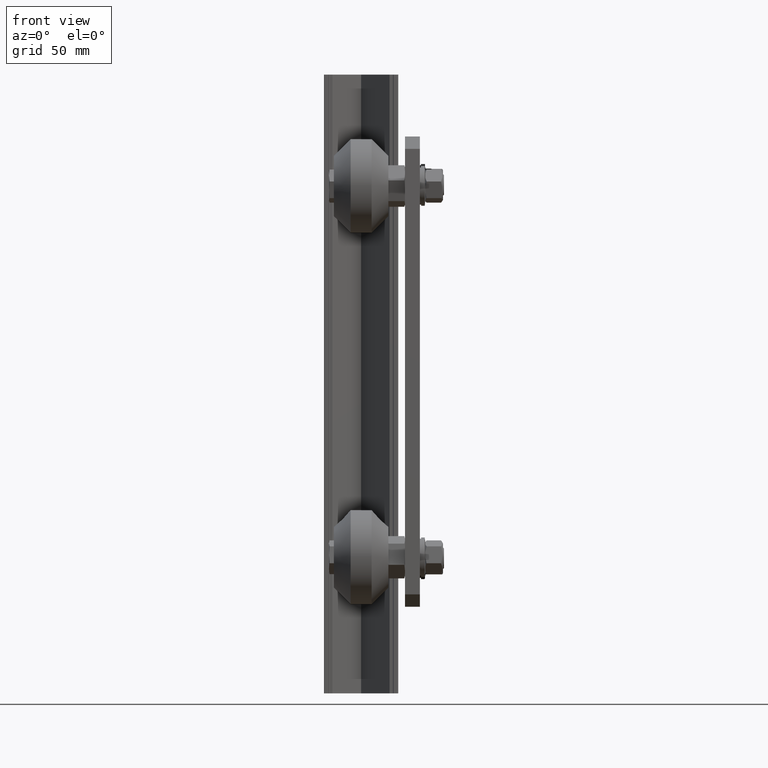
[diagram: clean part render]
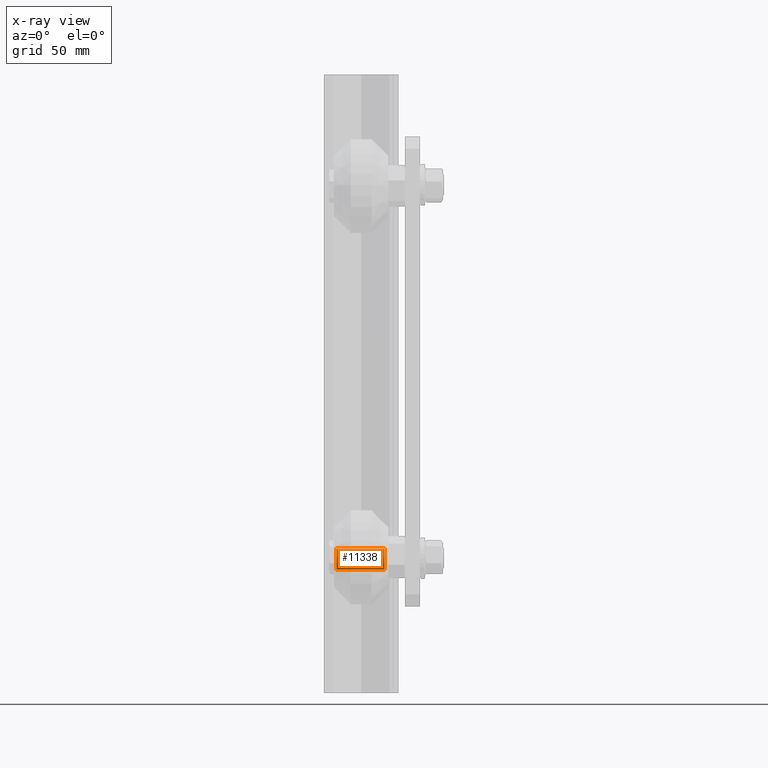
[diagram: x-ray — body ghosted, one internal face saturated and labeled with its STEP entity id]
A machine part, front view, then the same camera in x-ray: the body is ghosted and one INTERNAL B-rep face — a face not visible from any outside direction — is saturated and labeled: STEP entity #11338.
In plain terms, the highlighted cylindrical surface (bore or boss wall) has radius 8.5 mm, axis along (1, -0, 0).
Its self-contained STEP definition (entity closure, byte-faithful):
#1194=FACE_OUTER_BOUND('',#1818,.T.);
#1818=EDGE_LOOP('',(#9154,#9155,#9156,#9157));
#2701=LINE('',#18393,#3573);
#3573=VECTOR('',#14946,8.5);
#4204=CIRCLE('',#12537,8.5);
#4205=CIRCLE('',#12539,8.5);
#5101=VERTEX_POINT('',#18388);
#5102=VERTEX_POINT('',#18391);
#6552=EDGE_CURVE('',#5101,#5101,#4204,.T.);
#6553=EDGE_CURVE('',#5102,#5102,#4205,.T.);
#6554=EDGE_CURVE('',#5102,#5101,#2701,.T.);
#9154=ORIENTED_EDGE('',*,*,#6553,.F.);
#9155=ORIENTED_EDGE('',*,*,#6554,.T.);
#9156=ORIENTED_EDGE('',*,*,#6552,.T.);
#9157=ORIENTED_EDGE('',*,*,#6554,.F.);
#11013=CYLINDRICAL_SURFACE('',#12538,8.5);
#11338=ADVANCED_FACE('',(#1194),#11013,.T.);
#12537=AXIS2_PLACEMENT_3D('',#18389,#14940,#14941);
#12538=AXIS2_PLACEMENT_3D('',#18390,#14942,#14943);
#12539=AXIS2_PLACEMENT_3D('',#18392,#14944,#14945);
#14940=DIRECTION('center_axis',(1.,0.,0.));
#14941=DIRECTION('ref_axis',(0.,1.,0.));
#14942=DIRECTION('center_axis',(1.,0.,0.));
#14943=DIRECTION('ref_axis',(0.,1.,0.));
#14944=DIRECTION('center_axis',(1.,0.,0.));
#14945=DIRECTION('ref_axis',(0.,1.,0.));
#14946=DIRECTION('',(-1.,0.,0.));
#18388=CARTESIAN_POINT('',(6.,-8.5,-1.04094977927525E-15));
#18389=CARTESIAN_POINT('Origin',(6.,0.,0.));
#18390=CARTESIAN_POINT('Origin',(25.5,0.,0.));
#18391=CARTESIAN_POINT('',(45.,-8.5,-1.04094977927525E-15));
#18392=CARTESIAN_POINT('Origin',(45.,0.,0.));
#18393=CARTESIAN_POINT('',(25.5,-8.5,-1.04094977927525E-15));